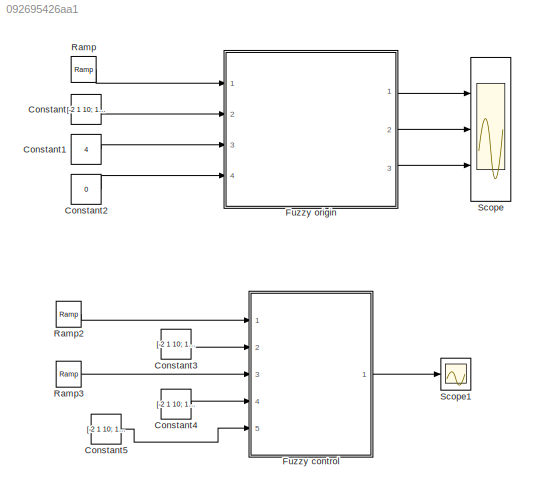
MODEL slx_092695426aa1
KIND model
CONFIG AbsTol = auto
CONFIG EnableMultiTasking = on
CONFIG FixedStep = auto
CONFIG MaxStep = auto
CONFIG MinStep = auto
CONFIG RelTol = 1e-3
CONFIG SampleTimeConstraint = Unconstrained
CONFIG Solver = ode45
CONFIG SolverName = ode45
CONFIG StartTime = 0.0
CONFIG StopTime = 10.0
BLOCK [Constant] Constant
  Value = [-2 1 10; 1 2 3; 2 3 10]
BLOCK [Constant] Constant1
  Value = 4
BLOCK [Constant] Constant2
  Value = 0
BLOCK [Constant] Constant3
  Value = [-2 1 10; 1 2 3; 2 3 10]
BLOCK [Constant] Constant4
  Value = [-2 1 10; 1 2 3; 2 3 10]
BLOCK [Constant] Constant5
  Value = [-2 1 10; 1 2 3; 2 3 10]
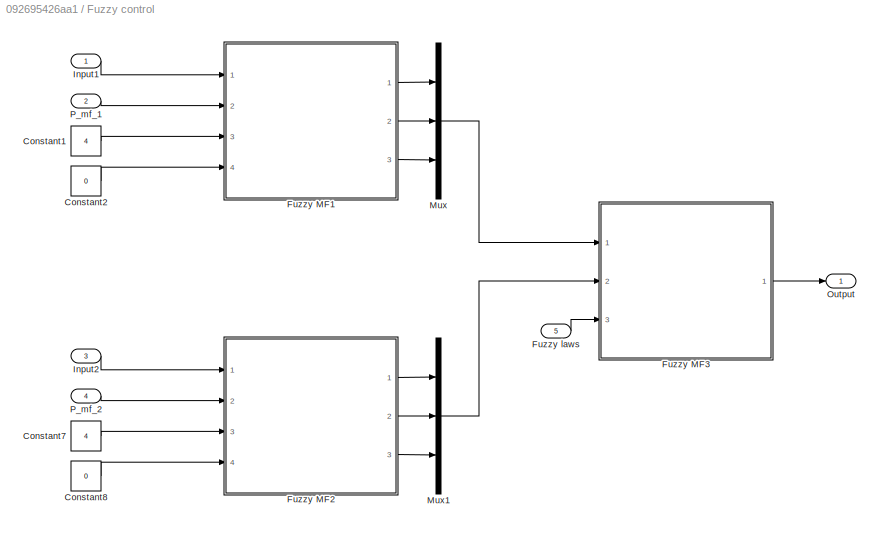
BLOCK [SubSystem] Fuzzy control
  Ports = [5, 1]
  RequestExecContextInheritance = off
BLOCK [Constant] Fuzzy control/Constant1
  Value = 4
BLOCK [Constant] Fuzzy control/Constant2
  Value = 0
BLOCK [Constant] Fuzzy control/Constant7
  Value = 4
BLOCK [Constant] Fuzzy control/Constant8
  Value = 0
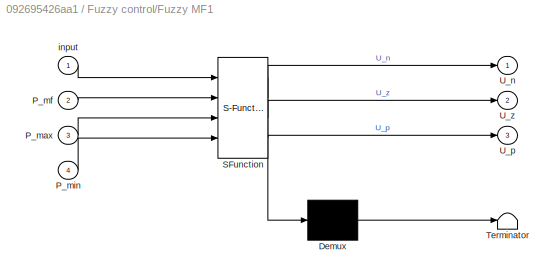
BLOCK [SubSystem] Fuzzy control/Fuzzy MF1
  ErrorFcn = Stateflow.Translate.translate
  PermitHierarchicalResolution = ExplicitOnly
  Ports = [4, 3]
  RequestExecContextInheritance = off
  SFBlockType = MATLAB Function
  TreatAsAtomicUnit = on
BLOCK [Demux] Fuzzy control/Fuzzy MF1/ Demux 
  Outputs = 1
  Ports = [1, 1]
BLOCK [S-Function] Fuzzy control/Fuzzy MF1/ SFunction 
  EnableBusSupport = off
  FunctionName = sf_sfun
  PortCounts = [4 4]
  Ports = [4, 4]
  SFcnIsStateOwnerBlock = off
  SFunctionDeploymentMode = off
  Tag = Stateflow S-Function 1
BLOCK [Terminator] Fuzzy control/Fuzzy MF1/ Terminator 
BLOCK [Inport] Fuzzy control/Fuzzy MF1/P_max
  IconDisplay = Port number
  Port = 3
BLOCK [Inport] Fuzzy control/Fuzzy MF1/P_mf
  IconDisplay = Port number
  Port = 2
BLOCK [Inport] Fuzzy control/Fuzzy MF1/P_min
  IconDisplay = Port number
  Port = 4
BLOCK [Outport] Fuzzy control/Fuzzy MF1/U_n
  IconDisplay = Port number
BLOCK [Outport] Fuzzy control/Fuzzy MF1/U_p
  IconDisplay = Port number
  Port = 3
BLOCK [Outport] Fuzzy control/Fuzzy MF1/U_z
  IconDisplay = Port number
  Port = 2
BLOCK [Inport] Fuzzy control/Fuzzy MF1/input
  IconDisplay = Port number
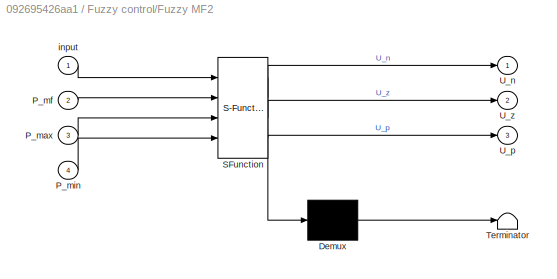
BLOCK [SubSystem] Fuzzy control/Fuzzy MF2
  ErrorFcn = Stateflow.Translate.translate
  PermitHierarchicalResolution = ExplicitOnly
  Ports = [4, 3]
  RequestExecContextInheritance = off
  SFBlockType = MATLAB Function
  TreatAsAtomicUnit = on
BLOCK [Demux] Fuzzy control/Fuzzy MF2/ Demux 
  Outputs = 1
  Ports = [1, 1]
BLOCK [S-Function] Fuzzy control/Fuzzy MF2/ SFunction 
  EnableBusSupport = off
  FunctionName = sf_sfun
  PortCounts = [4 4]
  Ports = [4, 4]
  SFcnIsStateOwnerBlock = off
  SFunctionDeploymentMode = off
  Tag = Stateflow S-Function 3
BLOCK [Terminator] Fuzzy control/Fuzzy MF2/ Terminator 
BLOCK [Inport] Fuzzy control/Fuzzy MF2/P_max
  IconDisplay = Port number
  Port = 3
BLOCK [Inport] Fuzzy control/Fuzzy MF2/P_mf
  IconDisplay = Port number
  Port = 2
BLOCK [Inport] Fuzzy control/Fuzzy MF2/P_min
  IconDisplay = Port number
  Port = 4
BLOCK [Outport] Fuzzy control/Fuzzy MF2/U_n
  IconDisplay = Port number
BLOCK [Outport] Fuzzy control/Fuzzy MF2/U_p
  IconDisplay = Port number
  Port = 3
BLOCK [Outport] Fuzzy control/Fuzzy MF2/U_z
  IconDisplay = Port number
  Port = 2
BLOCK [Inport] Fuzzy control/Fuzzy MF2/input
  IconDisplay = Port number
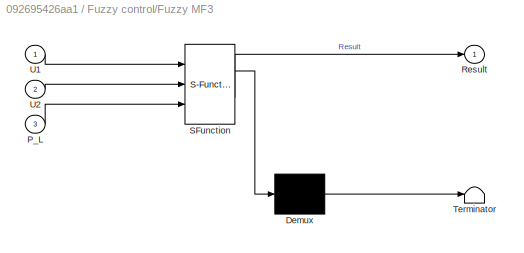
BLOCK [SubSystem] Fuzzy control/Fuzzy MF3
  ErrorFcn = Stateflow.Translate.translate
  PermitHierarchicalResolution = ExplicitOnly
  Ports = [3, 1]
  RequestExecContextInheritance = off
  SFBlockType = MATLAB Function
  TreatAsAtomicUnit = on
BLOCK [Demux] Fuzzy control/Fuzzy MF3/ Demux 
  Outputs = 1
  Ports = [1, 1]
BLOCK [S-Function] Fuzzy control/Fuzzy MF3/ SFunction 
  EnableBusSupport = off
  FunctionName = sf_sfun
  PortCounts = [3 2]
  Ports = [3, 2]
  SFcnIsStateOwnerBlock = off
  SFunctionDeploymentMode = off
  Tag = Stateflow S-Function 4
BLOCK [Terminator] Fuzzy control/Fuzzy MF3/ Terminator 
BLOCK [Inport] Fuzzy control/Fuzzy MF3/P_L
  IconDisplay = Port number
  Port = 3
BLOCK [Outport] Fuzzy control/Fuzzy MF3/Result
  IconDisplay = Port number
BLOCK [Inport] Fuzzy control/Fuzzy MF3/U1
  IconDisplay = Port number
BLOCK [Inport] Fuzzy control/Fuzzy MF3/U2
  IconDisplay = Port number
  Port = 2
BLOCK [Inport] Fuzzy control/Fuzzy laws
  IconDisplay = Port number
  Port = 5
BLOCK [Inport] Fuzzy control/Input1
  IconDisplay = Port number
BLOCK [Inport] Fuzzy control/Input2
  IconDisplay = Port number
  Port = 3
BLOCK [Mux] Fuzzy control/Mux
  DisplayOption = bar
  Inputs = 3
  Ports = [3, 1]
BLOCK [Mux] Fuzzy control/Mux1
  DisplayOption = bar
  Inputs = 3
  Ports = [3, 1]
BLOCK [Outport] Fuzzy control/Output
  IconDisplay = Port number
BLOCK [Inport] Fuzzy control/P_mf_1
  IconDisplay = Port number
  Port = 2
BLOCK [Inport] Fuzzy control/P_mf_2
  IconDisplay = Port number
  Port = 4
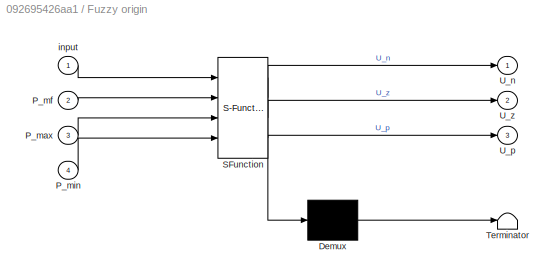
BLOCK [SubSystem] Fuzzy origin
  ErrorFcn = Stateflow.Translate.translate
  PermitHierarchicalResolution = ExplicitOnly
  Ports = [4, 3]
  RequestExecContextInheritance = off
  SFBlockType = MATLAB Function
  TreatAsAtomicUnit = on
BLOCK [Demux] Fuzzy origin/ Demux 
  Outputs = 1
  Ports = [1, 1]
BLOCK [S-Function] Fuzzy origin/ SFunction 
  EnableBusSupport = off
  FunctionName = sf_sfun
  PortCounts = [4 4]
  Ports = [4, 4]
  SFcnIsStateOwnerBlock = off
  SFunctionDeploymentMode = off
  Tag = Stateflow S-Function 2
BLOCK [Terminator] Fuzzy origin/ Terminator 
BLOCK [Inport] Fuzzy origin/P_max
  IconDisplay = Port number
  Port = 3
BLOCK [Inport] Fuzzy origin/P_mf
  IconDisplay = Port number
  Port = 2
BLOCK [Inport] Fuzzy origin/P_min
  IconDisplay = Port number
  Port = 4
BLOCK [Outport] Fuzzy origin/U_n
  IconDisplay = Port number
BLOCK [Outport] Fuzzy origin/U_p
  IconDisplay = Port number
  Port = 3
BLOCK [Outport] Fuzzy origin/U_z
  IconDisplay = Port number
  Port = 2
BLOCK [Inport] Fuzzy origin/input
  IconDisplay = Port number
BLOCK [Reference] Ramp  REF=simulink/Sources/Ramp
  Ports = [0, 1]
  SourceBlock = simulink/Sources/Ramp
  SourceProductBaseCode = SL
  SourceProductName = Simulink
  SourceType = Ramp
BLOCK [Reference] Ramp2  REF=simulink/Sources/Ramp
  Ports = [0, 1]
  SourceBlock = simulink/Sources/Ramp
  SourceProductBaseCode = SL
  SourceProductName = Simulink
  SourceType = Ramp
BLOCK [Reference] Ramp3  REF=simulink/Sources/Ramp
  Ports = [0, 1]
  SourceBlock = simulink/Sources/Ramp
  SourceProductBaseCode = SL
  SourceProductName = Simulink
  SourceType = Ramp
BLOCK [Scope] Scope
  Floating = off
  NumInputPorts = 3
  Ports = [3]
  ScopeSpecificationString = C++SS(StrPVP('Location','[5, 49, 1925, 1039]'),StrPVP('Open','off'),MxPVP('AxesTitles',54,'struct(''axes1'',''%<SignalLabel>'',''axes2'',''%<SignalLabel>'',''axes3'',''%<SignalLabel>'')'),MxPVP('ScopeGraphics',57,'struct(''FigureColor'',''[0.5 0.5 0.5]'',''AxesColor'',''[0 0 0]'',''AxesTickColor'',''[1 1 1]'',''LineColors'',''[1 1 0;1 0 1;0 1 1;1 0 0;0 1 0;0 0 1]'',''LineStyles'',''-|-|-|-|-|-'','...<+345ch>
BLOCK [Scope] Scope1
  Floating = off
  NumInputPorts = 1
  Ports = [1]
  ScopeSpecificationString = C++SS(StrPVP('Location','[1, 49, 1921, 1039]'),StrPVP('Open','off'),MxPVP('AxesTitles',54,'struct(''axes1'',''%<SignalLabel>'')'),MxPVP('ScopeGraphics',57,'struct(''FigureColor'',''[0.5 0.5 0.5]'',''AxesColor'',''[0 0 0]'',''AxesTickColor'',''[1 1 1]'',''LineColors'',''[1 1 0;1 0 1;0 1 1;1 0 0;0 1 0;0 0 1]'',''LineStyles'',''-|-|-|-|-|-'',''LineWidths'',''[0.5 0.5 0.5 0.5 0.5 0.5]'',''MarkerStyles...<+270ch>
LINE Constant1:1 -> Fuzzy origin:3
LINE Constant2:1 -> Fuzzy origin:4
LINE Constant3:1 -> Fuzzy control:2
LINE Constant4:1 -> Fuzzy control:4
LINE Constant5:1 -> Fuzzy control:5
LINE Constant:1 -> Fuzzy origin:2
LINE Fuzzy control/Constant1:1 -> Fuzzy control/Fuzzy MF1:3
LINE Fuzzy control/Constant2:1 -> Fuzzy control/Fuzzy MF1:4
LINE Fuzzy control/Constant7:1 -> Fuzzy control/Fuzzy MF2:3
LINE Fuzzy control/Constant8:1 -> Fuzzy control/Fuzzy MF2:4
LINE Fuzzy control/Fuzzy MF1:1 -> Fuzzy control/Mux:1
LINE Fuzzy control/Fuzzy MF1:2 -> Fuzzy control/Mux:2
LINE Fuzzy control/Fuzzy MF1:3 -> Fuzzy control/Mux:3
LINE Fuzzy control/Fuzzy MF2:1 -> Fuzzy control/Mux1:1
LINE Fuzzy control/Fuzzy MF2:2 -> Fuzzy control/Mux1:2
LINE Fuzzy control/Fuzzy MF2:3 -> Fuzzy control/Mux1:3
LINE Fuzzy control/Fuzzy MF3:1 -> Fuzzy control/Output:1
LINE Fuzzy control/Fuzzy laws:1 -> Fuzzy control/Fuzzy MF3:3
LINE Fuzzy control/Input1:1 -> Fuzzy control/Fuzzy MF1:1
LINE Fuzzy control/Input2:1 -> Fuzzy control/Fuzzy MF2:1
LINE Fuzzy control/Mux1:1 -> Fuzzy control/Fuzzy MF3:2
LINE Fuzzy control/Mux:1 -> Fuzzy control/Fuzzy MF3:1
LINE Fuzzy control/P_mf_1:1 -> Fuzzy control/Fuzzy MF1:2
LINE Fuzzy control/P_mf_2:1 -> Fuzzy control/Fuzzy MF2:2
LINE Fuzzy control:1 -> Scope1:1
LINE Fuzzy origin:1 -> Scope:1
LINE Fuzzy origin:2 -> Scope:2
LINE Fuzzy origin:3 -> Scope:3
LINE Ramp2:1 -> Fuzzy control:1
LINE Ramp3:1 -> Fuzzy control:3
LINE Ramp:1 -> Fuzzy origin:1
CHART Fuzzy control/Fuzzy MF1 states=1 transitions=1
  STATE_LABEL 'eML_blk_kernel()'
  STATE_LABEL 'SCRIPT:\nfunction [U_n,U_z,U_p] = Fuzzy_mf(input,P_mf,P_max,P_min)\n% This is a function to fuzzy the input varriables, there are 3mf in one\n% module.\n%% check & modify the elements in the parameters matrix\nU_n=0;U_z=0;U_p=0;\nP_mf(1,1)=P_min;\nP_mf(3,3)=P_max;\n% a>=P_min & c<P_max\nfor i=1:3\n    if P_mf(i,1)<P_min\n        P_mf(i,1)=P_min;\n    end\n    if P_mf(i,3)>P_max\n        P_mf(i,3)=P_max;\n    end...<+917ch>'  <repeated x3 — deduplicated; at blocks: Fuzzy MF1, Fuzzy origin, Fuzzy MF2>
CHART Fuzzy origin states=1 transitions=1
  STATE_LABEL 'eML_blk_kernel()'
CHART Fuzzy control/Fuzzy MF2 states=1 transitions=1
  STATE_LABEL 'eML_blk_kernel()'
CHART Fuzzy control/Fuzzy MF3 states=1 transitions=1
  STATE_LABEL 'eML_blk_kernel()'
  STATE_LABEL 'SCRIPT:\nfunction Result  = Defuzz(U1,U2,P_L)\n% 0 order of TS, weight average method\n%% caculate the weight of each rule \nw=zeros(3,3);\nResult=0;\nfor i=1:3\n    for j=1:3\n        w(i,j)=U1(i)*U2(j);\n    end\nend\nw_sum=sum(sum(w));\n%% weight average method for the output \nfor i=1:3\n    for j=1:3\n        Result=Result+w(i,j)/w_sum*P_L(i,j);\n    end\nend\n'
